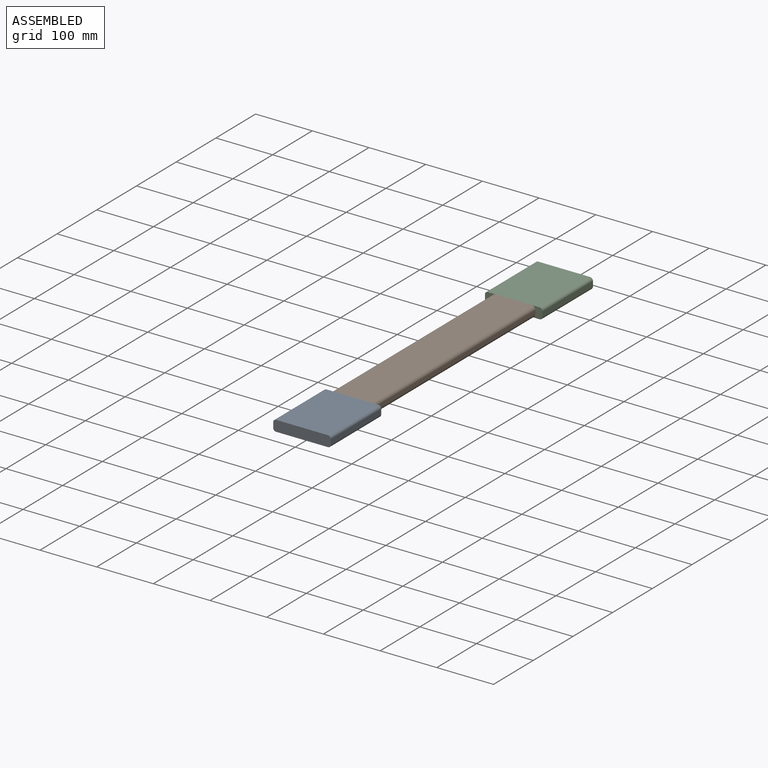
[diagram: assembled view]
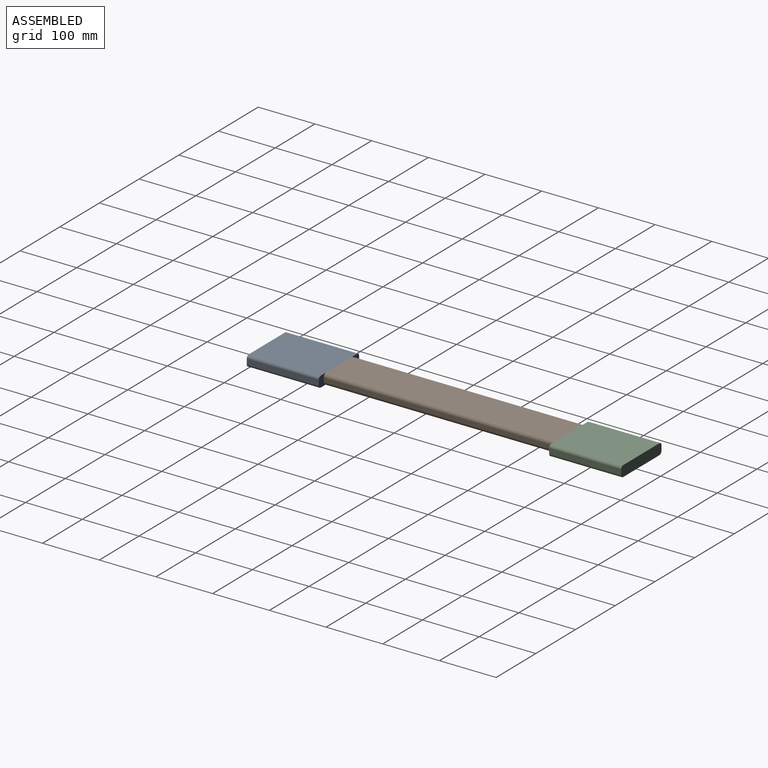
[diagram: assembled view, second angle]
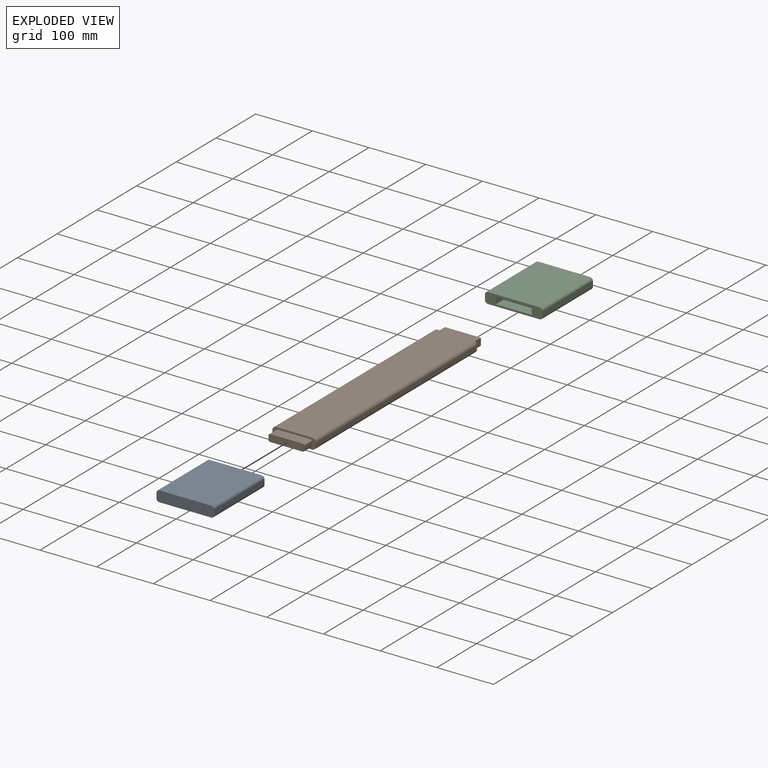
[diagram: exploded view]
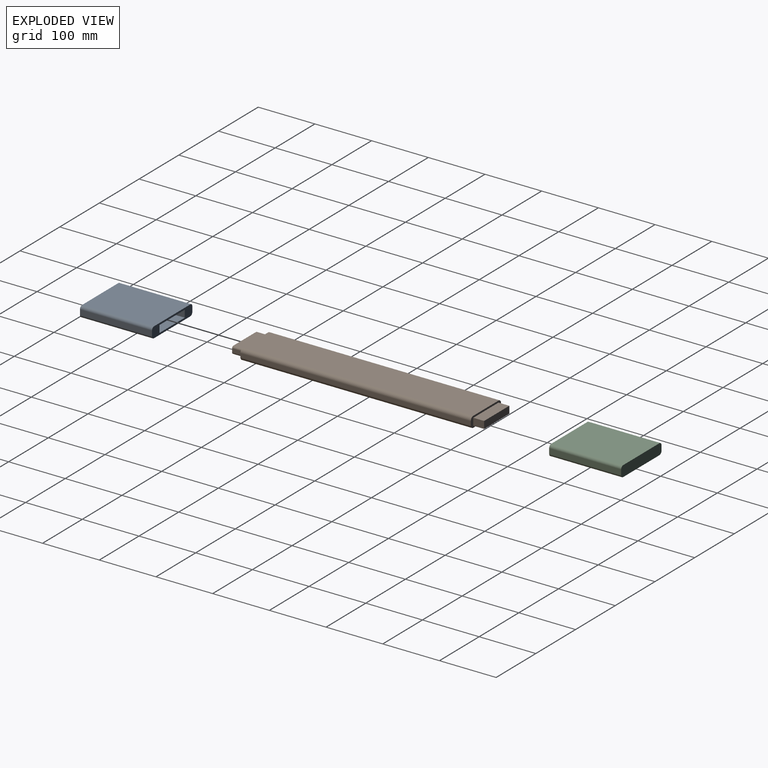
[diagram: exploded view, second angle]
ASSEMBLY  parts=3 mates=2
PART A: 15 faces, bbox 101.6x127x19.1 mm
  f0: plane 101.6x19.05mm, normal (0,-1,0), area 1106.9mm2, adj f1,f2,f3,f4,f6,f7,f8,f9
  f1: plane 127x91.44mm, normal (0,0,-1), area 11612.9mm2, adj f0,f5,f11,f14
  f2: plane 127x8.89mm, normal (1,0,0), area 1129mm2, adj f0,f5,f11,f12
  f3: plane 127x91.44mm, normal (0,0,1), area 11612.9mm2, adj f0,f5,f12,f13
  f4: plane 127x8.89mm, normal (-1,0,0), area 1129mm2, adj f0,f5,f13,f14
  f5: plane 101.6x19.05mm, normal (0,1,0), area 1913.3mm2, adj f1,f2,f3,f4,f11,f12,f13,f14
  f6: plane 63.5x19.05mm, normal (0,0,1), area 1209.7mm2, adj f0,f7,f9,f10
  f7: plane 19.05x12.7mm, normal (-1,0,0), area 241.9mm2, adj f0,f6,f8,f10
  f8: plane 63.5x19.05mm, normal (0,0,-1), area 1209.7mm2, adj f0,f7,f9,f10
  f9: plane 19.05x12.7mm, normal (1,0,0), area 241.9mm2, adj f0,f6,f8,f10
  f10: plane 63.5x12.7mm, normal (0,-1,0), area 806.5mm2, adj f6,f7,f8,f9
  f11: cylinder r=5.08mm len=127mm, axis (0,-1,0), area 1013.4mm2, adj f0,f1,f2,f5
  f12: cylinder r=5.08mm len=127mm, axis (0,1,0), area 1013.4mm2, adj f0,f2,f3,f5
  f13: cylinder r=5.08mm len=127mm, axis (0,-1,0), area 1013.4mm2, adj f0,f3,f4,f5
  f14: cylinder r=5.08mm len=127mm, axis (0,1,0), area 1013.4mm2, adj f0,f1,f4,f5
PART B: 24 faces, bbox 76.2x444.5x19.1 mm
  f0: plane 76.2x19.05mm, normal (0,-1,0), area 619.2mm2, adj f1,f2,f3,f4,f6,f7,f8,f9
  f1: plane 406.4x6.35mm, normal (-1,0,0), area 2580.6mm2, adj f0,f5,f11,f14
  f2: plane 406.4x63.5mm, normal (0,0,-1), area 25806.4mm2, adj f0,f5,f11,f12
  f3: plane 406.4x6.35mm, normal (1,0,0), area 2580.6mm2, adj f0,f5,f12,f13
  f4: plane 406.4x63.5mm, normal (0,0,1), area 25806.4mm2, adj f0,f5,f13,f14
  f5: plane 76.2x19.05mm, normal (0,1,0), area 610.5mm2, adj f1,f2,f3,f4,f11,f12,f13,f14
  f6: plane 19.05x6.35mm, normal (-1,0,0), area 121mm2, adj f0,f10,f20,f23
  f7: plane 57.15x19.05mm, normal (0,0,-1), area 1088.7mm2, adj f0,f10,f20,f21
  f8: plane 19.05x6.35mm, normal (1,0,0), area 121mm2, adj f0,f10,f21,f22
  f9: plane 57.15x19.05mm, normal (0,0,1), area 1088.7mm2, adj f0,f10,f22,f23
  f10: plane 63.5x12.7mm, normal (0,-1,0), area 797.8mm2, adj f6,f7,f8,f9,f20,f21,f22,f23
  f11: cylinder r=6.35mm len=406.4mm, axis (0,-1,0), area 4053.7mm2, adj f0,f1,f2,f5
  f12: cylinder r=6.35mm len=406.4mm, axis (0,-1,0), area 4053.7mm2, adj f0,f2,f3,f5
  f13: cylinder r=6.35mm len=406.4mm, axis (0,-1,0), area 4053.7mm2, adj f0,f3,f4,f5
  f14: cylinder r=6.35mm len=406.4mm, axis (0,-1,0), area 4053.7mm2, adj f0,f1,f4,f5
  f15: plane 19.05x12.7mm, normal (1,0,0), area 241.9mm2, adj f5,f16,f18,f19
  f16: plane 63.5x19.05mm, normal (0,0,-1), area 1209.7mm2, adj f5,f15,f17,f19
  f17: plane 19.05x12.7mm, normal (-1,0,0), area 241.9mm2, adj f5,f16,f18,f19
  f18: plane 63.5x19.05mm, normal (0,0,1), area 1209.7mm2, adj f5,f15,f17,f19
  f19: plane 63.5x12.7mm, normal (0,1,0), area 806.5mm2, adj f15,f16,f17,f18
  f20: cylinder r=3.17mm len=19.05mm, axis (0,1,0), area 95mm2, adj f0,f6,f7,f10
  f21: cylinder r=3.17mm len=19.05mm, axis (0,1,0), area 95mm2, adj f0,f7,f8,f10
  f22: cylinder r=3.17mm len=19.05mm, axis (0,1,0), area 95mm2, adj f0,f8,f9,f10
  f23: cylinder r=3.17mm len=19.05mm, axis (0,1,0), area 95mm2, adj f0,f6,f9,f10
PART C: same geometry as A
PLACE A rot(axis=(1,0,0),180deg) t=(5.52,-163.54,54.7)mm
PLACE B t=(2.04,-163.54,34.32)mm
PLACE C t=(5.52,242.86,54.7)mm
MATE parallel C.f10 <-> B.f19  axis (0,-1,0) through (5.52,261.91,54.7)mm
MATE parallel A.f10 <-> B.f10  axis (0,1,0) through (5.52,-182.59,54.7)mm
